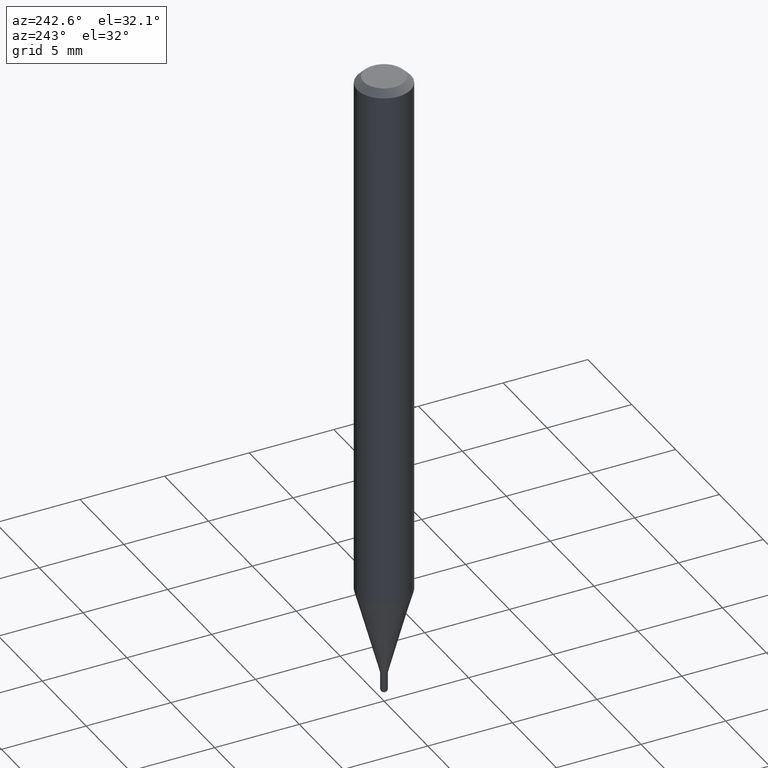
[diagram: clean part render]
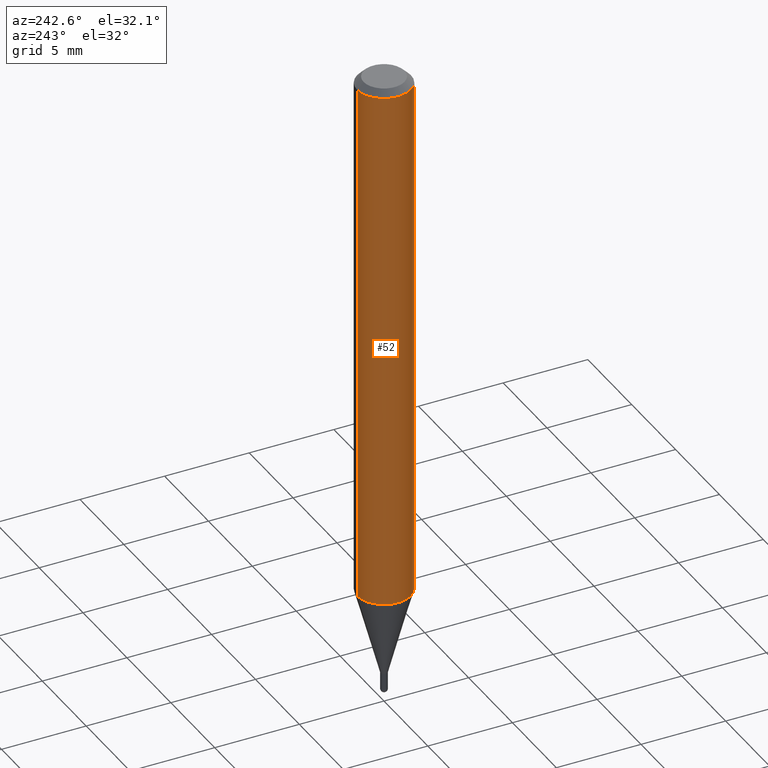
[diagram: same view with one face highlighted and labeled with its STEP entity id]
A machine part, auxiliary view. The second image highlights one B-rep face of the part: STEP entity #52.
In plain terms, the highlighted cylindrical surface (edge-blend (fillet) strip) has radius 1.5875 mm, axis along (-0, 0, 1).
Its self-contained STEP definition (entity closure, byte-faithful):
#5 = CYLINDRICAL_SURFACE ( 'NONE', #420, 0.06250000000000000000 ) ;
#29 = VERTEX_POINT ( 'NONE', #47 ) ;
#32 = DIRECTION ( 'NONE',  ( -6.982962677686265922E-15, -1.000000000000000000, 3.483106191921935554E-15 ) ) ;
#44 = DIRECTION ( 'NONE',  ( -6.982962677686265922E-15, -1.000000000000000000, 3.491497944111267737E-15 ) ) ;
#47 = CARTESIAN_POINT ( 'NONE',  ( -4.364351673553612983E-16, -0.06250000000000438538, -1.248603230987503698 ) ) ;
#52 = ADVANCED_FACE ( 'NONE', ( #242 ), #5, .T. ) ;
#57 = CARTESIAN_POINT ( 'NONE',  ( -4.364351673553912750E-16, -0.06250000000000005551, -0.01499999999999984852 ) ) ;
#61 = VECTOR ( 'NONE', #98, 39.37007874015748143 ) ;
#92 = EDGE_CURVE ( 'NONE', #394, #29, #104, .T. ) ;
#98 = DIRECTION ( 'NONE',  ( -2.445457210788381726E-29, 3.491497944111267737E-15, 1.000000000000000000 ) ) ;
#99 = EDGE_LOOP ( 'NONE', ( #146, #502, #113, #266 ) ) ;
#104 = CIRCLE ( 'NONE', #272, 0.06250000000000000000 ) ;
#111 = CARTESIAN_POINT ( 'NONE',  ( 3.668185816182588791E-31, -5.237246916166924532E-17, -0.01500000000000006710 ) ) ;
#113 = ORIENTED_EDGE ( 'NONE', *, *, #208, .T. ) ;
#116 = DIRECTION ( 'NONE',  ( -2.445457210788381726E-29, 3.491497944111267737E-15, 1.000000000000000000 ) ) ;
#125 = DIRECTION ( 'NONE',  ( -2.445457210788381726E-29, 3.491497944111267737E-15, 1.000000000000000000 ) ) ;
#126 = DIRECTION ( 'NONE',  ( -6.982962677686265922E-15, -1.000000000000000000, 4.370956789862821150E-15 ) ) ;
#136 = AXIS2_PLACEMENT_3D ( 'NONE', #111, #116, #32 ) ;
#142 = CIRCLE ( 'NONE', #136, 0.06250000000000000000 ) ;
#146 = ORIENTED_EDGE ( 'NONE', *, *, #505, .F. ) ;
#149 = VERTEX_POINT ( 'NONE', #57 ) ;
#179 = CARTESIAN_POINT ( 'NONE',  ( -4.364351673553916201E-16, -0.06250000000000000000, 2.182186215069542336E-16 ) ) ;
#197 = VECTOR ( 'NONE', #200, 39.37007874015748143 ) ;
#200 = DIRECTION ( 'NONE',  ( -2.445457210788381726E-29, 3.491497944111267737E-15, 1.000000000000000000 ) ) ;
#201 = CARTESIAN_POINT ( 'NONE',  ( 0.000000000000000000, 0.000000000000000000, 0.000000000000000000 ) ) ;
#208 = EDGE_CURVE ( 'NONE', #29, #149, #408, .T. ) ;
#209 = VERTEX_POINT ( 'NONE', #446 ) ;
#232 = CARTESIAN_POINT ( 'NONE',  ( 4.440892098500930859E-16, 0.06249999999999564237, -1.248603230987504142 ) ) ;
#241 = LINE ( 'NONE', #448, #197 ) ;
#242 = FACE_OUTER_BOUND ( 'NONE', #99, .T. ) ;
#266 = ORIENTED_EDGE ( 'NONE', *, *, #356, .F. ) ;
#272 = AXIS2_PLACEMENT_3D ( 'NONE', #400, #125, #126 ) ;
#356 = EDGE_CURVE ( 'NONE', #209, #149, #142, .T. ) ;
#394 = VERTEX_POINT ( 'NONE', #232 ) ;
#400 = CARTESIAN_POINT ( 'NONE',  ( 3.053405774632062689E-29, -4.359495614003555810E-15, -1.248603230987503920 ) ) ;
#408 = LINE ( 'NONE', #179, #61 ) ;
#420 = AXIS2_PLACEMENT_3D ( 'NONE', #201, #485, #44 ) ;
#446 = CARTESIAN_POINT ( 'NONE',  ( 4.440892098500932831E-16, 0.06249999999999995143, -0.01500000000000028394 ) ) ;
#448 = CARTESIAN_POINT ( 'NONE',  ( 4.440892098500625669E-16, 0.06250000000000000000, -2.182186215069542336E-16 ) ) ;
#485 = DIRECTION ( 'NONE',  ( -2.445457210788381726E-29, 3.491497944111267737E-15, 1.000000000000000000 ) ) ;
#502 = ORIENTED_EDGE ( 'NONE', *, *, #92, .T. ) ;
#505 = EDGE_CURVE ( 'NONE', #394, #209, #241, .T. ) ;